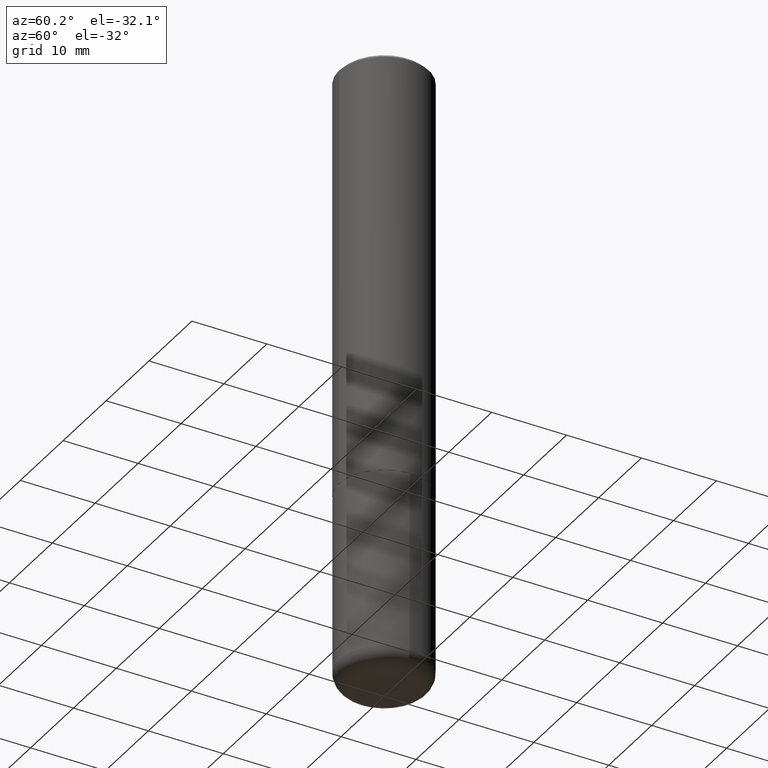
[diagram: clean part render]
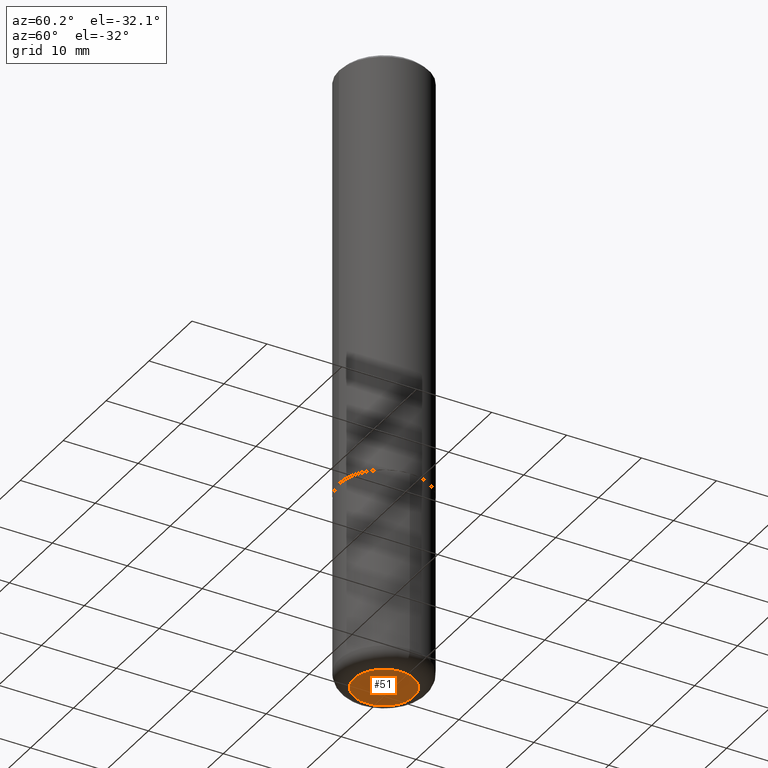
[diagram: same view with one face highlighted and labeled with its STEP entity id]
A machine part, auxiliary view. The second image highlights one B-rep face of the part: STEP entity #51.
In plain terms, the highlighted planar face has unit normal (0, -0, -1).
Its self-contained STEP definition (entity closure, byte-faithful):
#14 = AXIS2_PLACEMENT_3D ( 'NONE', #220, #155, #21 ) ;
#21 = DIRECTION ( 'NONE',  ( 1.000000000000000000, -6.982962677686261977E-15, 0.000000000000000000 ) ) ;
#29 = VERTEX_POINT ( 'NONE', #276 ) ;
#37 = ORIENTED_EDGE ( 'NONE', *, *, #242, .F. ) ;
#45 = DIRECTION ( 'NONE',  ( -2.445468806185136597E-29, 3.491481338843145583E-15, 1.000000000000000000 ) ) ;
#51 = ADVANCED_FACE ( 'NONE', ( #154 ), #402, .T. ) ;
#97 = VERTEX_POINT ( 'NONE', #247 ) ;
#132 = ORIENTED_EDGE ( 'NONE', *, *, #147, .F. ) ;
#145 = DIRECTION ( 'NONE',  ( 1.000000000000000000, -6.982962677686261977E-15, 0.000000000000000000 ) ) ;
#147 = EDGE_CURVE ( 'NONE', #29, #97, #305, .T. ) ;
#154 = FACE_OUTER_BOUND ( 'NONE', #243, .T. ) ;
#155 = DIRECTION ( 'NONE',  ( -2.445468806185136597E-29, 3.491481338843145583E-15, 1.000000000000000000 ) ) ;
#220 = CARTESIAN_POINT ( 'NONE',  ( 7.991058417971172834E-29, -1.140911357093774960E-14, -3.267700000000000937 ) ) ;
#239 = AXIS2_PLACEMENT_3D ( 'NONE', #367, #330, #308 ) ;
#242 = EDGE_CURVE ( 'NONE', #97, #29, #285, .T. ) ;
#243 = EDGE_LOOP ( 'NONE', ( #132, #37 ) ) ;
#246 = AXIS2_PLACEMENT_3D ( 'NONE', #311, #45, #145 ) ;
#247 = CARTESIAN_POINT ( 'NONE',  ( -0.1575000000000000011, -9.873020404910514350E-15, -3.267700000000000937 ) ) ;
#276 = CARTESIAN_POINT ( 'NONE',  ( 0.1575000000000000011, -1.250893019267333471E-14, -3.267700000000000937 ) ) ;
#285 = CIRCLE ( 'NONE', #14, 0.1575000000000000011 ) ;
#305 = CIRCLE ( 'NONE', #246, 0.1575000000000000011 ) ;
#308 = DIRECTION ( 'NONE',  ( -1.000000000000000000, 6.982962677686265922E-15, -4.876176775795935793E-29 ) ) ;
#311 = CARTESIAN_POINT ( 'NONE',  ( 7.991058417971172834E-29, -1.140911357093774960E-14, -3.267700000000000937 ) ) ;
#330 = DIRECTION ( 'NONE',  ( 2.438088387897960049E-29, -3.491481338843145188E-15, -1.000000000000000000 ) ) ;
#367 = CARTESIAN_POINT ( 'NONE',  ( 7.538501650987162025E-31, -2.274480841398118850E-14, -3.267700000000000937 ) ) ;
#402 = PLANE ( 'NONE',  #239 ) ;